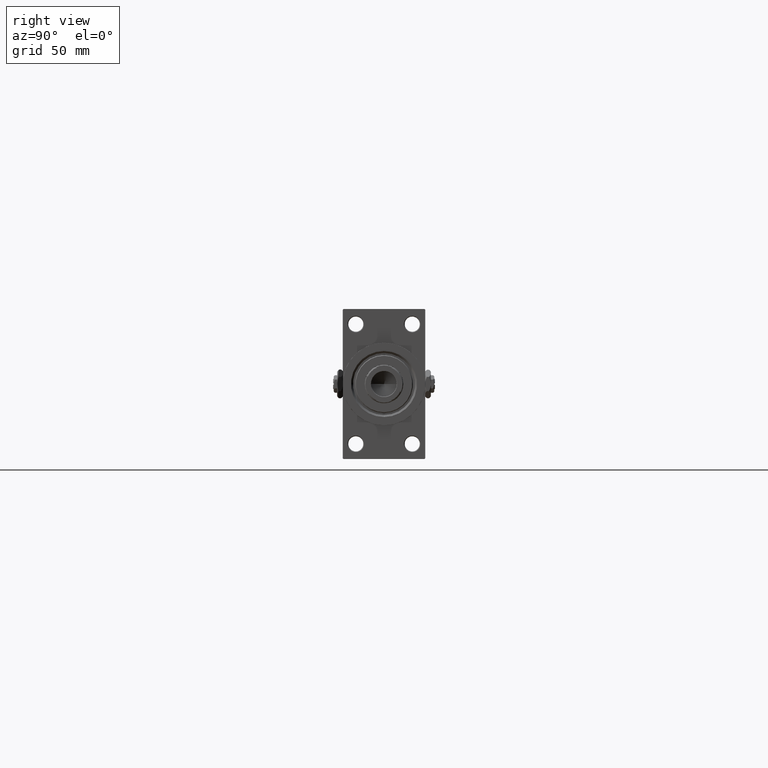
[diagram: clean part render]
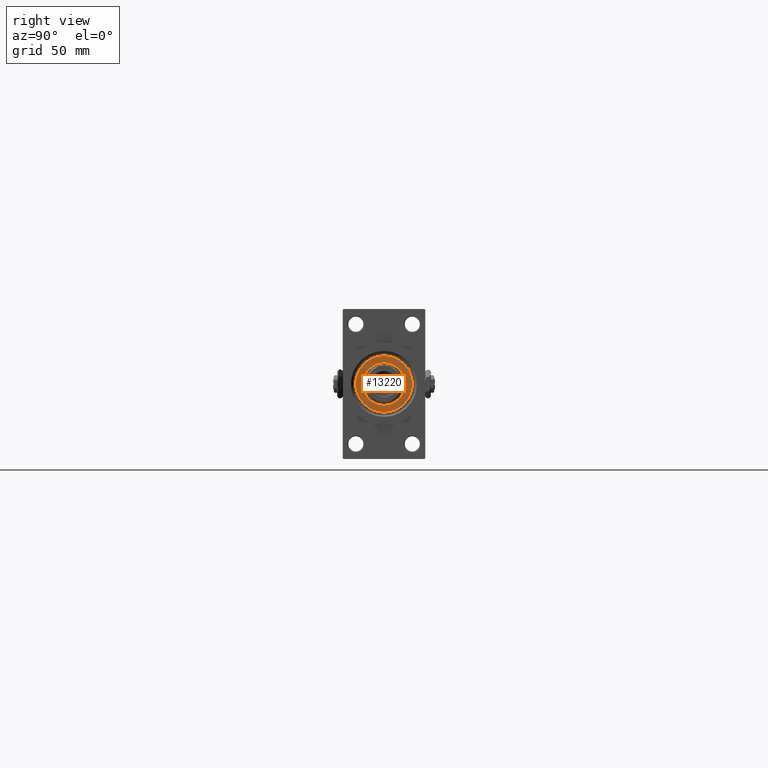
[diagram: same view with one face highlighted and labeled with its STEP entity id]
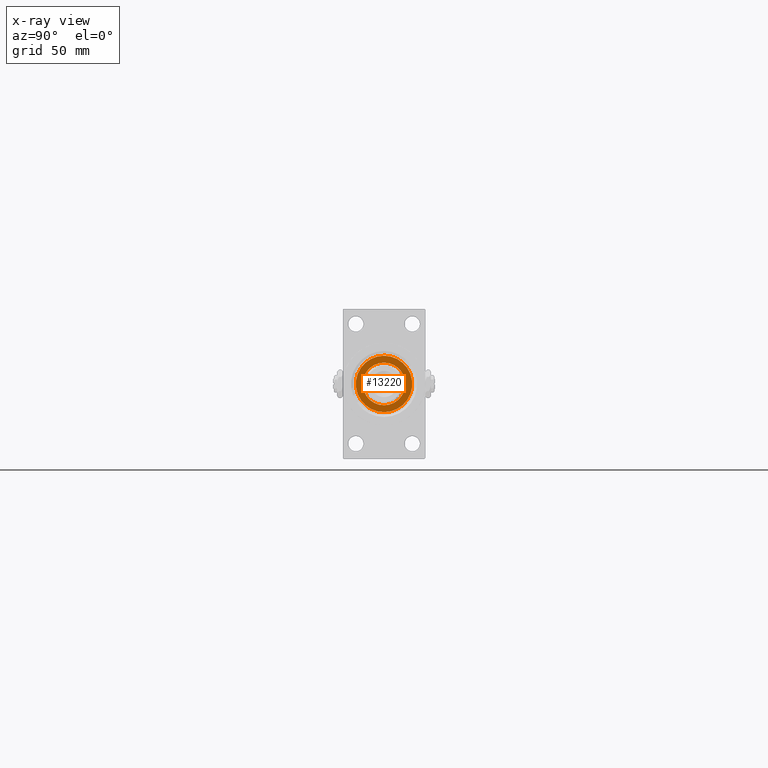
[diagram: x-ray of the same camera — body ghosted, the highlighted face saturated]
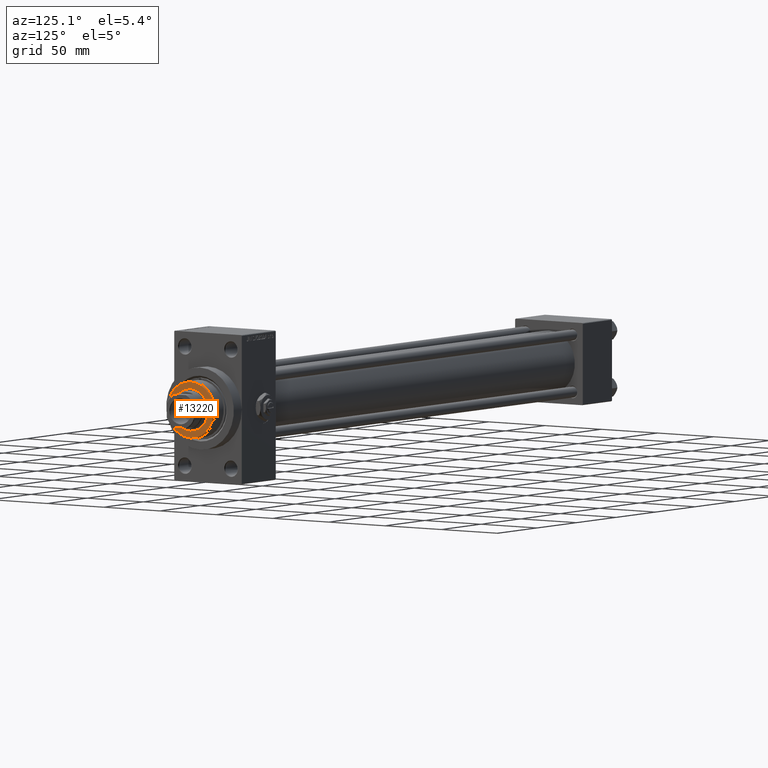
[diagram: same view with one face highlighted and labeled with its STEP entity id]
A machine part, right view. The second image highlights one B-rep face of the part: STEP entity #13220.
The next image is the same camera in x-ray: the body ghosted, the highlighted face saturated — about 0% of this face is hidden behind the body in this view.
A second angle (auxiliary view) of the same face is appended — the face is thin or edge-on in the first view.
In plain terms, the highlighted planar face has unit normal (1, -0, -0).
Its self-contained STEP definition (entity closure, byte-faithful):
#1081 = VERTEX_POINT ( 'NONE', #19273 ) ;
#2287 = CIRCLE ( 'NONE', #29971, 20.50000000000000355 ) ;
#4063 = FACE_BOUND ( 'NONE', #37809, .T. ) ;
#4629 = ORIENTED_EDGE ( 'NONE', *, *, #39117, .F. ) ;
#5064 = DIRECTION ( 'NONE',  ( 0.000000000000000000, 0.000000000000000000, 1.000000000000000000 ) ) ;
#7763 = CARTESIAN_POINT ( 'NONE',  ( 0.000000000000000000, 0.000000000000000000, 55.26000000000000512 ) ) ;
#9146 = CIRCLE ( 'NONE', #39220, 15.50000000000000000 ) ;
#9219 = CARTESIAN_POINT ( 'NONE',  ( 15.50000000000000000, 0.000000000000000000, 55.26000000000000512 ) ) ;
#9475 = CARTESIAN_POINT ( 'NONE',  ( 0.000000000000000000, 0.000000000000000000, 55.26000000000000512 ) ) ;
#9636 = AXIS2_PLACEMENT_3D ( 'NONE', #46349, #15621, #30742 ) ;
#11633 = EDGE_CURVE ( 'NONE', #1081, #18701, #9146, .T. ) ;
#12794 = VERTEX_POINT ( 'NONE', #33999 ) ;
#13220 = ADVANCED_FACE ( 'NONE', ( #4063, #46438 ), #26876, .T. ) ;
#13696 = CIRCLE ( 'NONE', #20023, 15.50000000000000000 ) ;
#14078 = ORIENTED_EDGE ( 'NONE', *, *, #11633, .F. ) ;
#14575 = VERTEX_POINT ( 'NONE', #47157 ) ;
#15621 = DIRECTION ( 'NONE',  ( 0.000000000000000000, 0.000000000000000000, 1.000000000000000000 ) ) ;
#16673 = DIRECTION ( 'NONE',  ( 0.000000000000000000, 0.000000000000000000, 1.000000000000000000 ) ) ;
#17064 = DIRECTION ( 'NONE',  ( 0.000000000000000000, 0.000000000000000000, 1.000000000000000000 ) ) ;
#18701 = VERTEX_POINT ( 'NONE', #9219 ) ;
#19273 = CARTESIAN_POINT ( 'NONE',  ( -15.50000000000000000, 1.898202538678397557E-15, 55.26000000000000512 ) ) ;
#20023 = AXIS2_PLACEMENT_3D ( 'NONE', #35172, #17064, #35417 ) ;
#20987 = ORIENTED_EDGE ( 'NONE', *, *, #26204, .T. ) ;
#21088 = AXIS2_PLACEMENT_3D ( 'NONE', #27608, #5064, #23160 ) ;
#23148 = DIRECTION ( 'NONE',  ( 1.000000000000000000, 0.000000000000000000, 0.000000000000000000 ) ) ;
#23160 = DIRECTION ( 'NONE',  ( 1.000000000000000000, 0.000000000000000000, -0.000000000000000000 ) ) ;
#26204 = EDGE_CURVE ( 'NONE', #14575, #12794, #2287, .T. ) ;
#26876 = PLANE ( 'NONE',  #21088 ) ;
#27608 = CARTESIAN_POINT ( 'NONE',  ( 0.000000000000000000, 0.000000000000000000, 55.26000000000000512 ) ) ;
#28637 = CIRCLE ( 'NONE', #9636, 20.50000000000000355 ) ;
#29971 = AXIS2_PLACEMENT_3D ( 'NONE', #9475, #16673, #35765 ) ;
#30579 = DIRECTION ( 'NONE',  ( 0.000000000000000000, 0.000000000000000000, 1.000000000000000000 ) ) ;
#30742 = DIRECTION ( 'NONE',  ( 1.000000000000000000, 0.000000000000000000, 0.000000000000000000 ) ) ;
#33999 = CARTESIAN_POINT ( 'NONE',  ( 20.50000000000000355, 2.541142108230758269E-15, 55.26000000000000512 ) ) ;
#35172 = CARTESIAN_POINT ( 'NONE',  ( 0.000000000000000000, 0.000000000000000000, 55.26000000000000512 ) ) ;
#35417 = DIRECTION ( 'NONE',  ( 1.000000000000000000, 0.000000000000000000, 0.000000000000000000 ) ) ;
#35512 = ORIENTED_EDGE ( 'NONE', *, *, #44252, .T. ) ;
#35765 = DIRECTION ( 'NONE',  ( 1.000000000000000000, 0.000000000000000000, 0.000000000000000000 ) ) ;
#37809 = EDGE_LOOP ( 'NONE', ( #4629, #14078 ) ) ;
#39117 = EDGE_CURVE ( 'NONE', #18701, #1081, #13696, .T. ) ;
#39220 = AXIS2_PLACEMENT_3D ( 'NONE', #7763, #30579, #23148 ) ;
#44252 = EDGE_CURVE ( 'NONE', #12794, #14575, #28637, .T. ) ;
#46349 = CARTESIAN_POINT ( 'NONE',  ( 0.000000000000000000, 0.000000000000000000, 55.26000000000000512 ) ) ;
#46438 = FACE_OUTER_BOUND ( 'NONE', #47372, .T. ) ;
#47157 = CARTESIAN_POINT ( 'NONE',  ( -20.50000000000000355, 0.000000000000000000, 55.26000000000000512 ) ) ;
#47372 = EDGE_LOOP ( 'NONE', ( #20987, #35512 ) ) ;